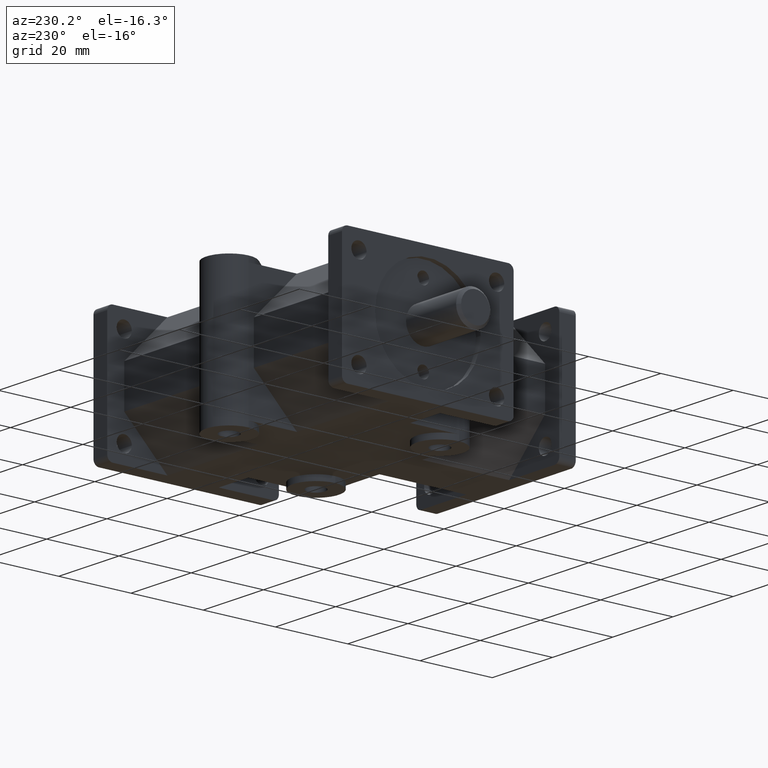
[diagram: clean part render]
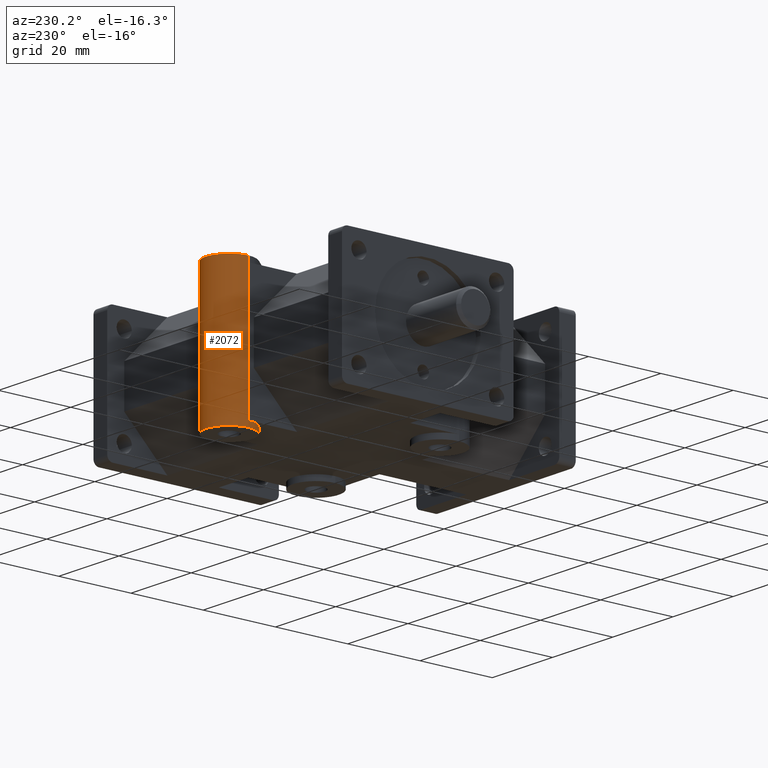
[diagram: same view with one face highlighted and labeled with its STEP entity id]
A machine part, auxiliary view. The second image highlights one B-rep face of the part: STEP entity #2072.
In plain terms, the highlighted cylindrical surface (bore or boss wall) has radius 6.35 mm, axis along (0, 0, 1).
Its self-contained STEP definition (entity closure, byte-faithful):
#134=FACE_OUTER_BOUND('',#253,.T.);
#253=EDGE_LOOP('',(#1418,#1419,#1420,#1421,#1422,#1423,#1424,#1425,#1426,
#1427));
#416=CIRCLE('',#2206,0.25);
#417=CIRCLE('',#2207,0.25);
#418=CIRCLE('',#2208,0.25);
#419=CIRCLE('',#2209,0.25);
#523=LINE('',#3090,#718);
#524=LINE('',#3094,#719);
#525=LINE('',#3098,#720);
#526=LINE('',#3102,#721);
#527=LINE('',#3104,#722);
#718=VECTOR('',#2437,0.25);
#719=VECTOR('',#2440,1.);
#720=VECTOR('',#2443,1.);
#721=VECTOR('',#2446,0.25);
#722=VECTOR('',#2449,1.);
#913=VERTEX_POINT('',#3088);
#914=VERTEX_POINT('',#3089);
#915=VERTEX_POINT('',#3091);
#916=VERTEX_POINT('',#3093);
#917=VERTEX_POINT('',#3095);
#918=VERTEX_POINT('',#3097);
#919=VERTEX_POINT('',#3099);
#920=VERTEX_POINT('',#3101);
#1114=EDGE_CURVE('',#913,#914,#523,.T.);
#1115=EDGE_CURVE('',#913,#915,#416,.T.);
#1116=EDGE_CURVE('',#916,#915,#524,.T.);
#1117=EDGE_CURVE('',#916,#917,#417,.T.);
#1118=EDGE_CURVE('',#918,#917,#525,.T.);
#1119=EDGE_CURVE('',#919,#918,#418,.T.);
#1120=EDGE_CURVE('',#919,#920,#526,.T.);
#1121=EDGE_CURVE('',#920,#920,#419,.T.);
#1122=EDGE_CURVE('',#919,#914,#527,.T.);
#1418=ORIENTED_EDGE('',*,*,#1114,.F.);
#1419=ORIENTED_EDGE('',*,*,#1115,.T.);
#1420=ORIENTED_EDGE('',*,*,#1116,.F.);
#1421=ORIENTED_EDGE('',*,*,#1117,.T.);
#1422=ORIENTED_EDGE('',*,*,#1118,.F.);
#1423=ORIENTED_EDGE('',*,*,#1119,.F.);
#1424=ORIENTED_EDGE('',*,*,#1120,.T.);
#1425=ORIENTED_EDGE('',*,*,#1121,.T.);
#1426=ORIENTED_EDGE('',*,*,#1120,.F.);
#1427=ORIENTED_EDGE('',*,*,#1122,.T.);
#2026=CYLINDRICAL_SURFACE('',#2205,0.25);
#2072=ADVANCED_FACE('',(#134),#2026,.T.);
#2205=AXIS2_PLACEMENT_3D('',#3087,#2435,#2436);
#2206=AXIS2_PLACEMENT_3D('',#3092,#2438,#2439);
#2207=AXIS2_PLACEMENT_3D('',#3096,#2441,#2442);
#2208=AXIS2_PLACEMENT_3D('',#3100,#2444,#2445);
#2209=AXIS2_PLACEMENT_3D('',#3103,#2447,#2448);
#2435=DIRECTION('center_axis',(0.,0.,1.));
#2436=DIRECTION('ref_axis',(1.,0.,0.));
#2437=DIRECTION('',(0.,0.,-1.));
#2438=DIRECTION('center_axis',(0.,0.,-1.));
#2439=DIRECTION('ref_axis',(1.,0.,0.));
#2440=DIRECTION('',(0.,0.,1.));
#2441=DIRECTION('center_axis',(0.,0.,-1.));
#2442=DIRECTION('ref_axis',(1.,0.,0.));
#2443=DIRECTION('',(0.,0.,1.));
#2444=DIRECTION('center_axis',(0.,0.,1.));
#2445=DIRECTION('ref_axis',(1.,0.,0.));
#2446=DIRECTION('',(0.,0.,-1.));
#2447=DIRECTION('center_axis',(0.,0.,1.));
#2448=DIRECTION('ref_axis',(1.,0.,0.));
#2449=DIRECTION('',(0.,0.,1.));
#3087=CARTESIAN_POINT('Origin',(0.,2.9975,0.));
#3088=CARTESIAN_POINT('',(-0.25,2.9975,0.75));
#3089=CARTESIAN_POINT('',(-0.25,2.9975,0.69));
#3090=CARTESIAN_POINT('',(-0.25,2.9975,0.));
#3091=CARTESIAN_POINT('',(0.248944199527125,3.02045180868252,0.75));
#3092=CARTESIAN_POINT('Origin',(0.,2.9975,0.75));
#3093=CARTESIAN_POINT('',(0.248944199527125,3.02045180868252,0.));
#3094=CARTESIAN_POINT('',(0.248944199527125,3.02045180868252,0.));
#3095=CARTESIAN_POINT('',(0.25,2.9975,0.));
#3096=CARTESIAN_POINT('Origin',(0.,2.9975,0.));
#3097=CARTESIAN_POINT('',(0.25,2.9975,-0.69));
#3098=CARTESIAN_POINT('',(0.25,2.9975,0.));
#3099=CARTESIAN_POINT('',(-0.25,2.9975,-0.69));
#3100=CARTESIAN_POINT('Origin',(0.,2.9975,-0.69));
#3101=CARTESIAN_POINT('',(-0.25,2.9975,-0.75));
#3102=CARTESIAN_POINT('',(-0.25,2.9975,0.));
#3103=CARTESIAN_POINT('Origin',(0.,2.9975,-0.75));
#3104=CARTESIAN_POINT('',(-0.25,2.9975,0.));